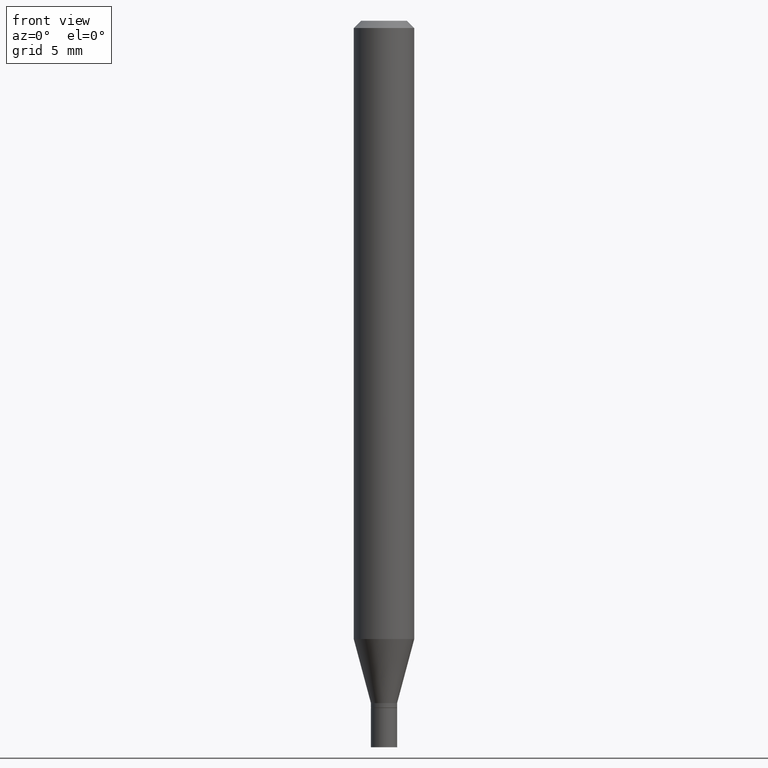
[diagram: clean part render]
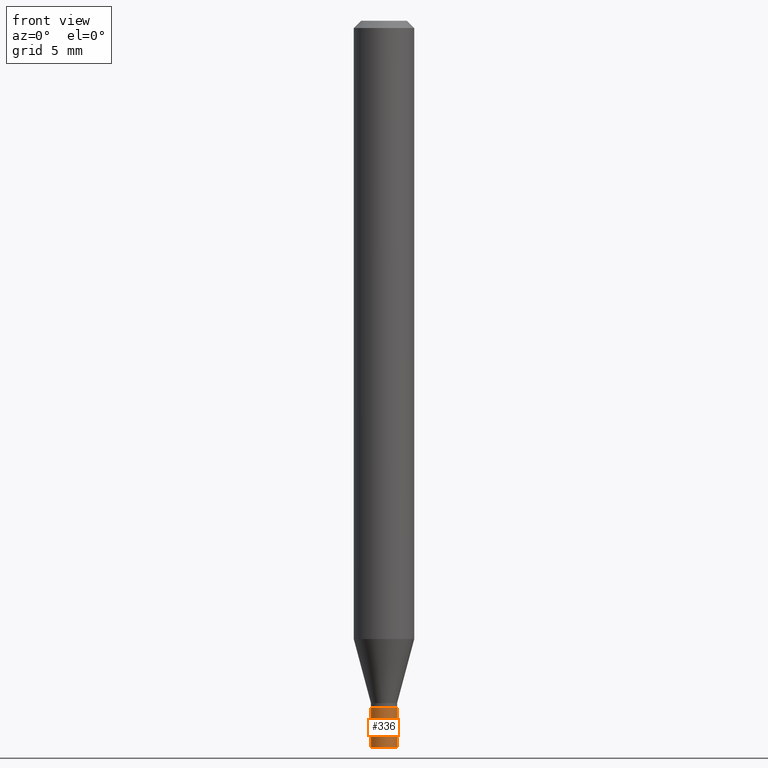
[diagram: same view with one face highlighted and labeled with its STEP entity id]
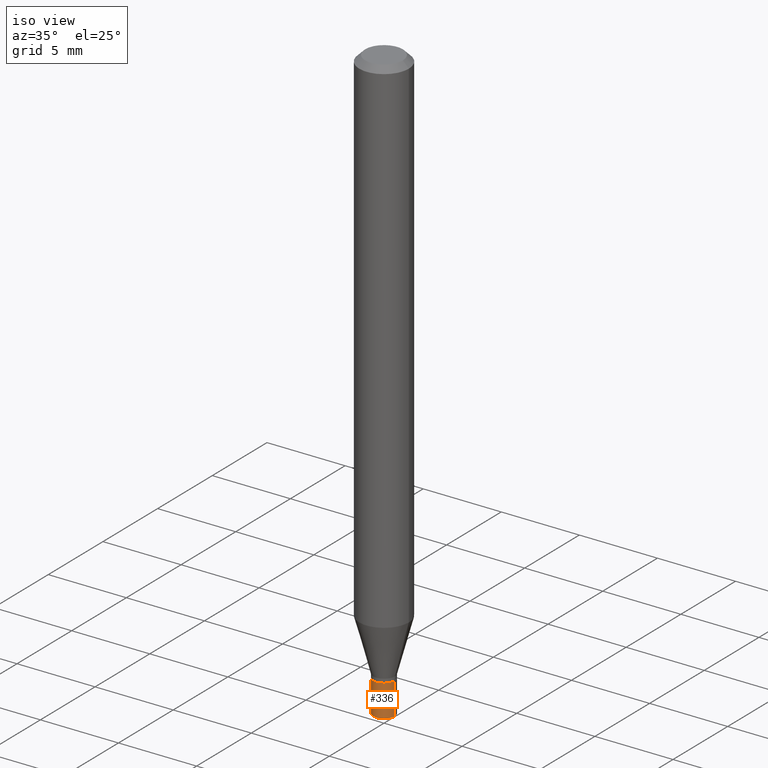
[diagram: same view with one face highlighted and labeled with its STEP entity id]
A machine part, front view. The second image highlights one B-rep face of the part: STEP entity #336.
A second angle (iso view) of the same face is appended — the face is thin or edge-on in the first view.
In plain terms, the highlighted cylindrical surface (edge-blend (fillet) strip) has radius 0.6858 mm, axis along (-0, 0, 1).
Its self-contained STEP definition (entity closure, byte-faithful):
#3 = CARTESIAN_POINT ( 'NONE',  ( 3.470120235976709172E-29, -4.954412019818423555E-15, -1.419000000000000039 ) ) ;
#16 = DIRECTION ( 'NONE',  ( -2.445468806185136877E-29, 3.491481338843145188E-15, 1.000000000000000000 ) ) ;
#19 = ORIENTED_EDGE ( 'NONE', *, *, #71, .T. ) ;
#34 = DIRECTION ( 'NONE',  ( -2.445468806185136877E-29, 3.491481338843145188E-15, 1.000000000000000000 ) ) ;
#52 = VERTEX_POINT ( 'NONE', #402 ) ;
#58 = EDGE_CURVE ( 'NONE', #265, #52, #195, .T. ) ;
#60 = AXIS2_PLACEMENT_3D ( 'NONE', #320, #332, #254 ) ;
#71 = EDGE_CURVE ( 'NONE', #300, #265, #351, .T. ) ;
#91 = CARTESIAN_POINT ( 'NONE',  ( -0.02699999999999999969, -4.903970475386344434E-15, -1.500000000000000222 ) ) ;
#93 = CIRCLE ( 'NONE', #186, 0.02699999999999999969 ) ;
#121 = ORIENTED_EDGE ( 'NONE', *, *, #58, .T. ) ;
#131 = ORIENTED_EDGE ( 'NONE', *, *, #204, .F. ) ;
#156 = DIRECTION ( 'NONE',  ( -2.445468806185136597E-29, 3.491481338843145583E-15, 1.000000000000000000 ) ) ;
#160 = CARTESIAN_POINT ( 'NONE',  ( 0.000000000000000000, 0.000000000000000000, 0.000000000000000000 ) ) ;
#162 = AXIS2_PLACEMENT_3D ( 'NONE', #160, #269, #343 ) ;
#165 = LINE ( 'NONE', #415, #187 ) ;
#186 = AXIS2_PLACEMENT_3D ( 'NONE', #3, #156, #313 ) ;
#187 = VECTOR ( 'NONE', #16, 39.37007874015748143 ) ;
#194 = CYLINDRICAL_SURFACE ( 'NONE', #162, 0.02699999999999999969 ) ;
#195 = LINE ( 'NONE', #362, #231 ) ;
#204 = EDGE_CURVE ( 'NONE', #268, #52, #93, .T. ) ;
#231 = VECTOR ( 'NONE', #34, 39.37007874015748143 ) ;
#236 = EDGE_LOOP ( 'NONE', ( #409, #19, #121, #131 ) ) ;
#254 = DIRECTION ( 'NONE',  ( 1.000000000000000000, -6.982962677686261189E-15, 0.000000000000000000 ) ) ;
#265 = VERTEX_POINT ( 'NONE', #429 ) ;
#268 = VERTEX_POINT ( 'NONE', #465 ) ;
#269 = DIRECTION ( 'NONE',  ( -2.445468806185136597E-29, 3.491481338843145583E-15, 1.000000000000000000 ) ) ;
#274 = EDGE_CURVE ( 'NONE', #300, #268, #165, .T. ) ;
#300 = VERTEX_POINT ( 'NONE', #91 ) ;
#305 = FACE_OUTER_BOUND ( 'NONE', #236, .T. ) ;
#313 = DIRECTION ( 'NONE',  ( 1.000000000000000000, -6.982962677686261189E-15, 0.000000000000000000 ) ) ;
#320 = CARTESIAN_POINT ( 'NONE',  ( 3.668203209277704895E-29, -5.237222008264718177E-15, -1.500000000000000222 ) ) ;
#332 = DIRECTION ( 'NONE',  ( -2.445468806185136597E-29, 3.491481338843145583E-15, 1.000000000000000000 ) ) ;
#336 = ADVANCED_FACE ( 'NONE', ( #305 ), #194, .T. ) ;
#343 = DIRECTION ( 'NONE',  ( 1.000000000000000000, -6.982962677686266711E-15, 4.876176775795935232E-29 ) ) ;
#351 = CIRCLE ( 'NONE', #60, 0.02699999999999999969 ) ;
#362 = CARTESIAN_POINT ( 'NONE',  ( 0.02699999999999999969, -1.885399922975291894E-16, 1.316567729464902510E-30 ) ) ;
#402 = CARTESIAN_POINT ( 'NONE',  ( 0.02699999999999999969, -5.142952012115952251E-15, -1.419000000000000039 ) ) ;
#409 = ORIENTED_EDGE ( 'NONE', *, *, #274, .F. ) ;
#415 = CARTESIAN_POINT ( 'NONE',  ( -0.02699999999999999969, 1.918465386552270480E-16, -1.328112474368824466E-30 ) ) ;
#429 = CARTESIAN_POINT ( 'NONE',  ( 0.02699999999999999969, -5.425762000562247662E-15, -1.500000000000000222 ) ) ;
#465 = CARTESIAN_POINT ( 'NONE',  ( -0.02699999999999999969, -4.903970475386344434E-15, -1.419000000000000039 ) ) ;